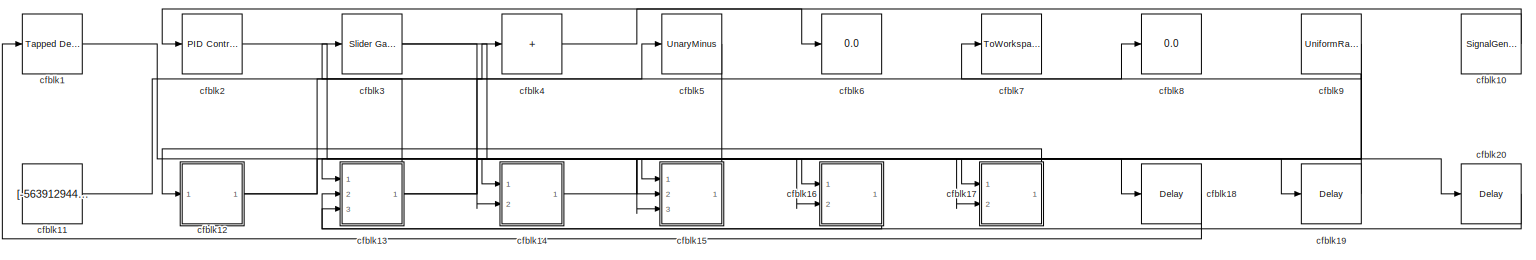
[diagram: root canvas - part 1/1, most of the canvas]
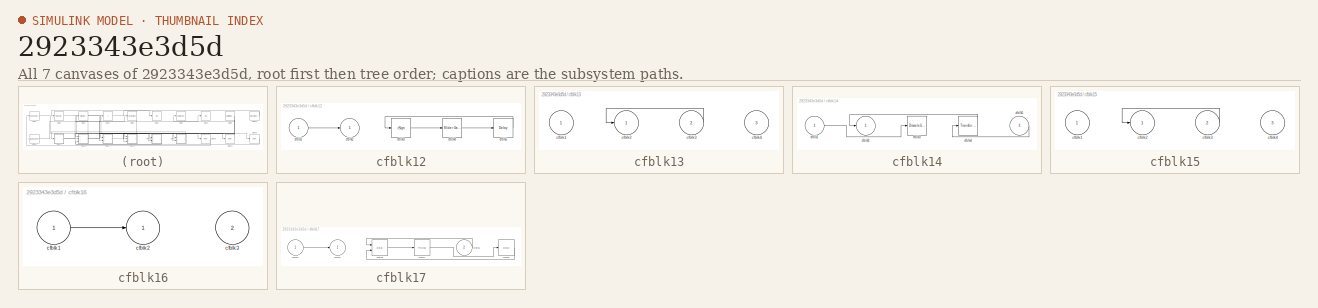
[diagram: thumbnail index - all 7 canvases of the model, root first then tree order]
MODEL slx_2923343e3d5d
KIND model
CONFIG AbsTol = auto
CONFIG EnableMultiTasking = off
CONFIG FixedStep = auto
CONFIG MaxStep = auto
CONFIG MinStep = auto
CONFIG RelTol = 1e-3
CONFIG SampleTimeConstraint = Unconstrained
CONFIG SolverName = VariableStepAuto
CONFIG StartTime = 0.0
CONFIG StopTime = 10.0
BLOCK [Reference] cfblk1  REF=simulink/Discrete/Tapped Delay
  Ports = [1, 1]
  SourceBlock = simulink/Discrete/Tapped Delay
  SourceProductBaseCode = SL
  SourceType = Tapped Delay Line
BLOCK [SignalGenerator] cfblk10
  Amplitude = [-619735160.138416]
  Ports = [0, 1]
  Units = rad/sec
  WaveForm = square
BLOCK [Constant] cfblk11
  SampleTime = 1
  Value = [-563912944.064980]
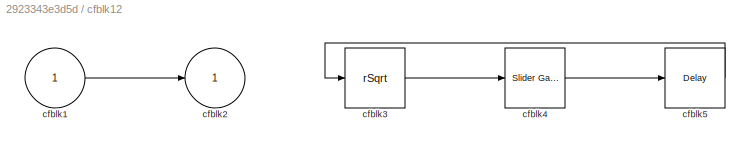
BLOCK [SubSystem] cfblk12
  Ports = [1, 1]
  RequestExecContextInheritance = off
BLOCK [Inport] cfblk12/cfblk1
BLOCK [Outport] cfblk12/cfblk2
BLOCK [Sqrt] cfblk12/cfblk3
  AlgorithmType = Newton-Raphson
  Operator = rSqrt
BLOCK [Reference] cfblk12/cfblk4  REF=simulink/Math
Operations/Slider
Gain
  Ports = [1, 1]
  SourceBlock = simulink/Math\nOperations/Slider\nGain
  SourceProductBaseCode = SL
  SourceType = Slider Gain
BLOCK [Delay] cfblk12/cfblk5
  InputPortMap = u0
  Ports = [1, 1]
  SampleTime = 1
BLOCK [SubSystem] cfblk13
  Ports = [3, 1]
  RequestExecContextInheritance = off
BLOCK [Inport] cfblk13/cfblk1
BLOCK [Outport] cfblk13/cfblk2
BLOCK [Inport] cfblk13/cfblk3
  Port = 2
BLOCK [Inport] cfblk13/cfblk4
  Port = 3
BLOCK [SubSystem] cfblk14
  Ports = [2, 1]
  RequestExecContextInheritance = off
BLOCK [Inport] cfblk14/cfblk1
BLOCK [Outport] cfblk14/cfblk2
BLOCK [DiscreteStateSpace] cfblk14/cfblk3
BLOCK [Reference] cfblk14/cfblk4  REF=simulink/Discrete/Transfer Fcn
First Order
  Ports = [1, 1]
  SourceBlock = simulink/Discrete/Transfer Fcn\nFirst Order
  SourceProductBaseCode = SL
  SourceType = First Order Transfer Fcn
BLOCK [Inport] cfblk14/cfblk5
  Port = 2
BLOCK [SubSystem] cfblk15
  Ports = [3, 1]
  RequestExecContextInheritance = off
BLOCK [Inport] cfblk15/cfblk1
BLOCK [Outport] cfblk15/cfblk2
BLOCK [Inport] cfblk15/cfblk3
  Port = 2
BLOCK [Inport] cfblk15/cfblk4
  Port = 3
BLOCK [SubSystem] cfblk16
  Ports = [2, 1]
  RequestExecContextInheritance = off
BLOCK [Inport] cfblk16/cfblk1
BLOCK [Outport] cfblk16/cfblk2
BLOCK [Inport] cfblk16/cfblk3
  Port = 2
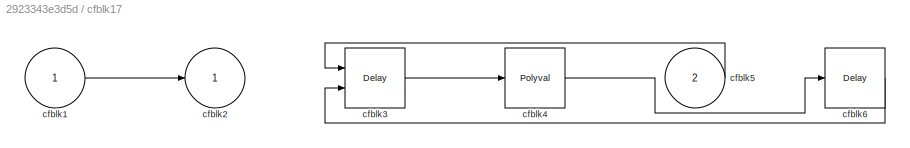
BLOCK [SubSystem] cfblk17
  Ports = [2, 1]
  RequestExecContextInheritance = off
BLOCK [Inport] cfblk17/cfblk1
BLOCK [Outport] cfblk17/cfblk2
BLOCK [Delay] cfblk17/cfblk3
  DelayLengthSource = Input port
  InputPortMap = u0,p1
  Ports = [2, 1]
  SampleTime = 1
BLOCK [Polyval] cfblk17/cfblk4
  Coefs = [ +2.081618890e-019, -1.441693666e-014, +4.719686976e-010, -8.536869453e-006, +1.621573104e-001, -8.087801117e+001 ]
BLOCK [Inport] cfblk17/cfblk5
  Port = 2
BLOCK [Delay] cfblk17/cfblk6
  InputPortMap = u0
  Ports = [1, 1]
  SampleTime = 1
BLOCK [Delay] cfblk18
  InputPortMap = u0
  Ports = [1, 1]
  SampleTime = 1
BLOCK [Delay] cfblk19
  InputPortMap = u0
  Ports = [1, 1]
  SampleTime = 1
BLOCK [Reference] cfblk2  REF=slpidlib/PID Controller
  Ports = [1, 1]
  SourceBlock = slpidlib/PID Controller
  SourceProductBaseCode = SL
  SourceType = PID 1dof
BLOCK [Delay] cfblk20
  InputPortMap = u0
  Ports = [1, 1]
  SampleTime = 1
BLOCK [Reference] cfblk3  REF=simulink/Math
Operations/Slider
Gain
  Ports = [1, 1]
  SourceBlock = simulink/Math\nOperations/Slider\nGain
  SourceProductBaseCode = SL
  SourceType = Slider Gain
BLOCK [Sum] cfblk4
  IconShape = rectangular
  Inputs = +
  Ports = [1, 1]
BLOCK [UnaryMinus] cfblk5
BLOCK [Display] cfblk6
  Decimation = 1
  Ports = [1]
BLOCK [ToWorkspace] cfblk7
  FixptAsFi = on
  MaxDataPoints = inf
  Ports = [1]
  SampleTime = -1
  SaveFormat = Timeseries
  VariableName = oqwmpfs
BLOCK [Display] cfblk8
  Decimation = 1
  Ports = [1]
BLOCK [UniformRandomNumber] cfblk9
  Maximum = [8244473244.742721]
  Minimum = [-8940980778.846504]
  SampleTime = 0.1
  Seed = [33898020.000000]
LINE cfblk10:1 -> cfblk2:1
LINE cfblk11:1 -> cfblk5:1
LINE cfblk12/cfblk1:1 -> cfblk12/cfblk2:1
LINE cfblk12/cfblk3:1 -> cfblk12/cfblk4:1
LINE cfblk12/cfblk4:1 -> cfblk12/cfblk5:1
LINE cfblk12/cfblk5:1 -> cfblk12/cfblk3:1
NET cfblk12:1 -> cfblk20:1, cfblk4:1
LINE cfblk13/cfblk3:1 -> cfblk13/cfblk2:1
NET cfblk13:1 -> cfblk18:1, cfblk3:1, cfblk8:1
LINE cfblk14/cfblk1:1 -> cfblk14/cfblk3:1
LINE cfblk14/cfblk4:1 -> cfblk14/cfblk2:1
LINE cfblk14/cfblk5:1 -> cfblk14/cfblk4:1
LINE cfblk14:1 -> cfblk19:1
LINE cfblk15/cfblk3:1 -> cfblk15/cfblk2:1
LINE cfblk15:1 -> cfblk14:1
LINE cfblk16/cfblk1:1 -> cfblk16/cfblk2:1
LINE cfblk16:1 -> cfblk13:2
LINE cfblk17/cfblk1:1 -> cfblk17/cfblk2:1
LINE cfblk17/cfblk3:1 -> cfblk17/cfblk4:1
LINE cfblk17/cfblk4:1 -> cfblk17/cfblk6:1
LINE cfblk17/cfblk5:1 -> cfblk17/cfblk3:1
LINE cfblk17/cfblk6:1 -> cfblk17/cfblk3:2
LINE cfblk17:1 -> cfblk12:1
LINE cfblk18:1 -> cfblk1:1
LINE cfblk19:1 -> cfblk13:1
LINE cfblk1:1 -> cfblk16:1
LINE cfblk20:1 -> cfblk13:3
LINE cfblk2:1 -> cfblk16:2
NET cfblk3:1 -> cfblk15:1, cfblk17:1
LINE cfblk4:1 -> cfblk6:1
LINE cfblk5:1 -> cfblk14:2
NET cfblk9:1 -> cfblk15:2, cfblk15:3, cfblk17:2, cfblk7:1
note: NET lines group one-source signal fan-out (src -> all destinations, sorted); 1:1 wires keep LINE
